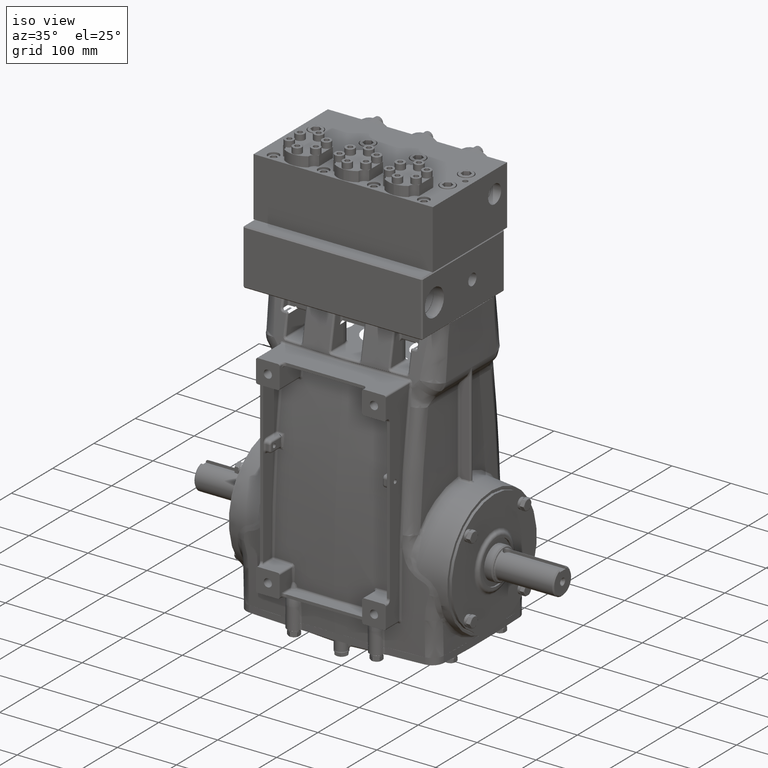
[diagram: clean part render]
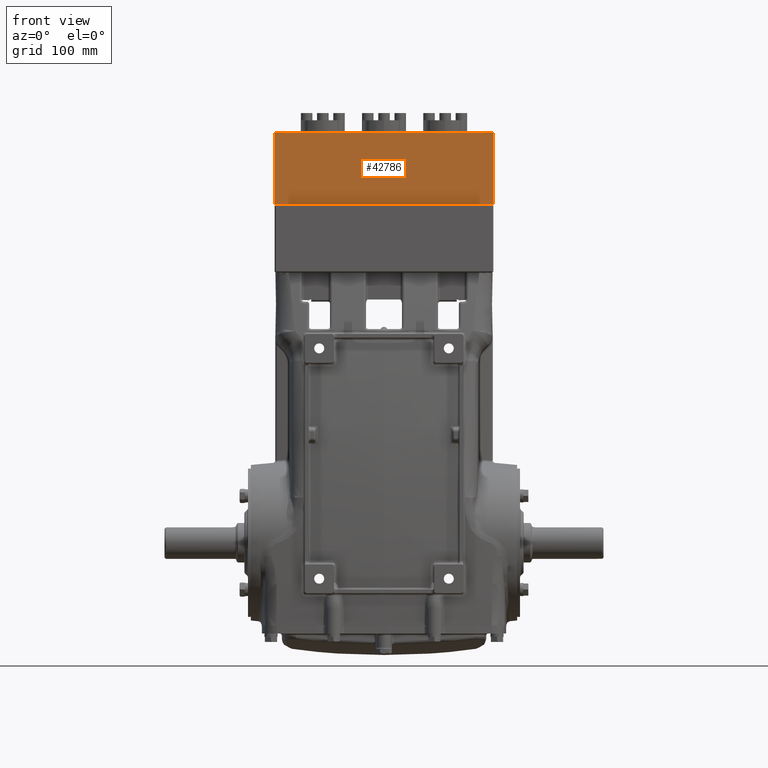
[diagram: tour spotlight — one face highlighted and labeled with its STEP entity id]
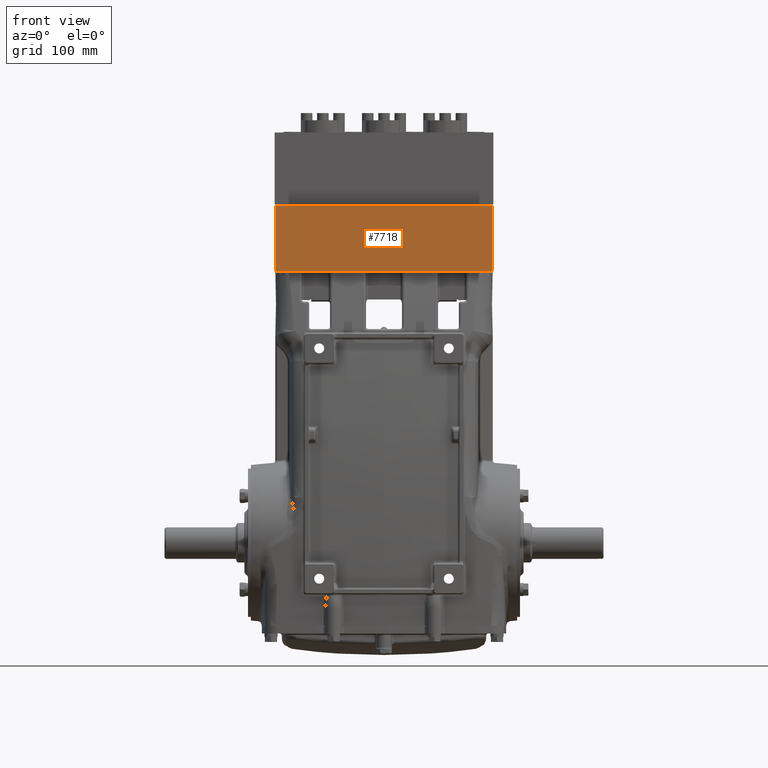
[diagram: tour spotlight — one face highlighted and labeled with its STEP entity id]
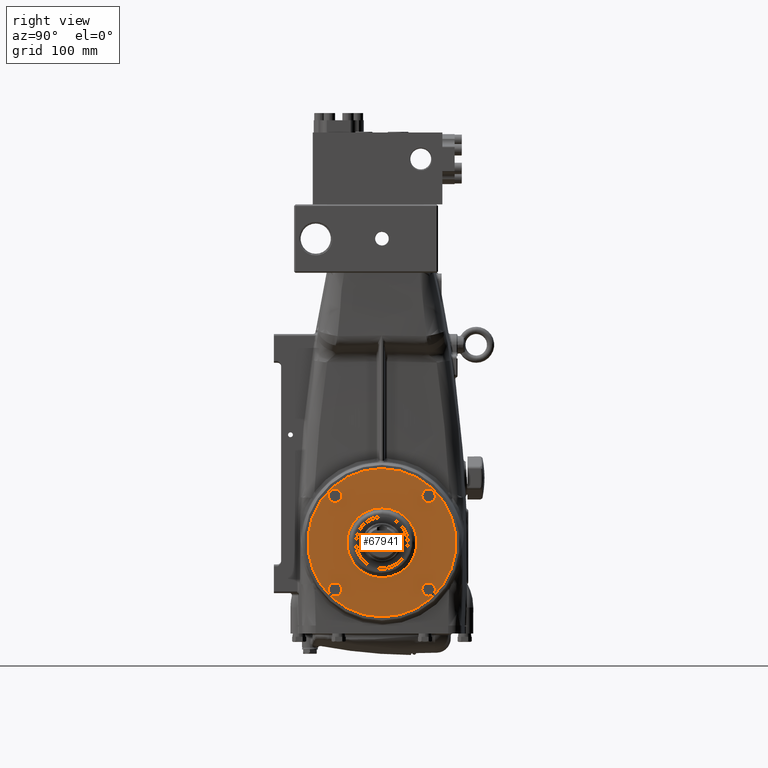
[diagram: tour spotlight — one face highlighted and labeled with its STEP entity id]
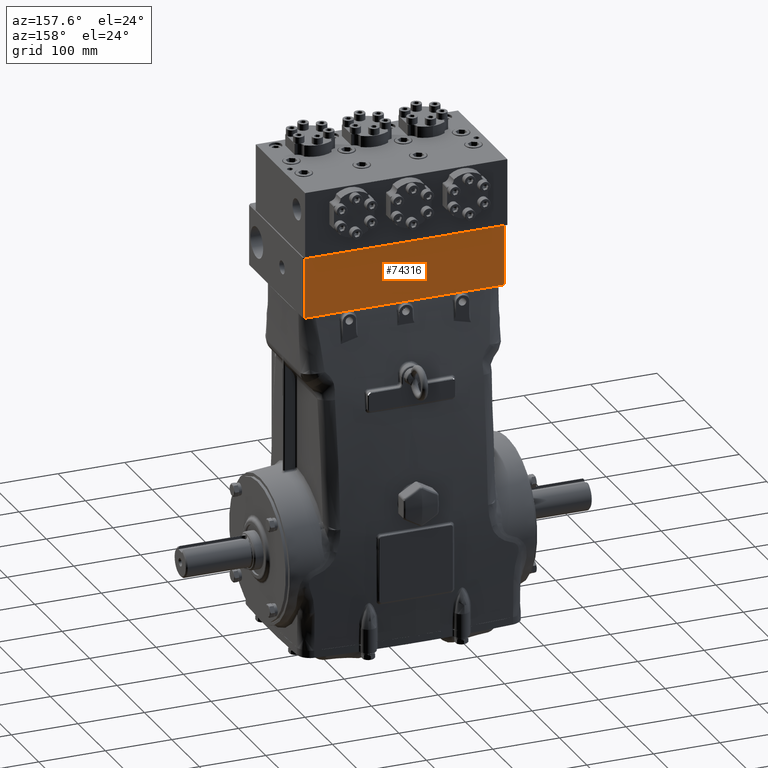
[diagram: tour spotlight — one face highlighted and labeled with its STEP entity id]
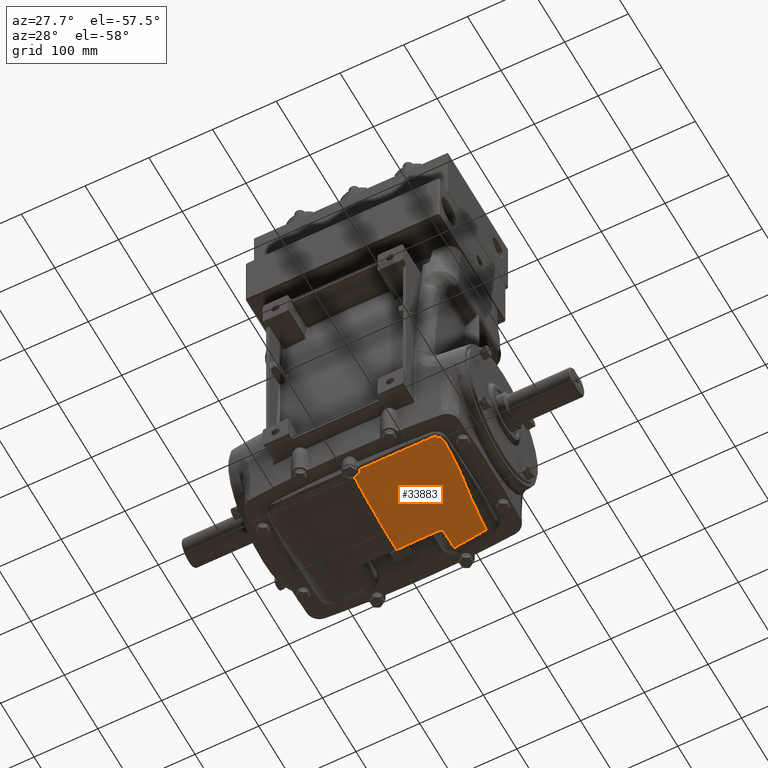
[diagram: tour spotlight — one face highlighted and labeled with its STEP entity id]
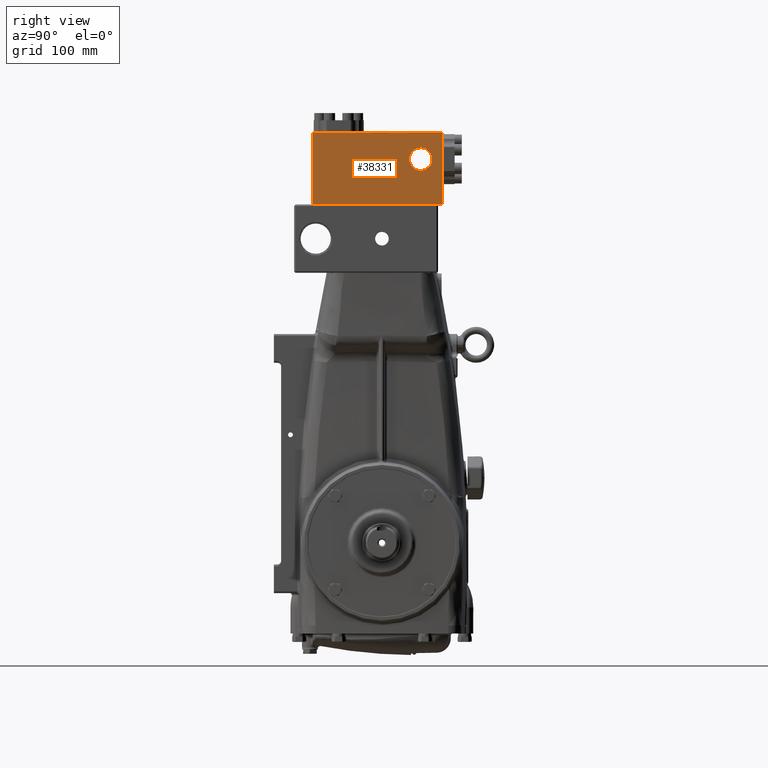
[diagram: tour spotlight — one face highlighted and labeled with its STEP entity id]
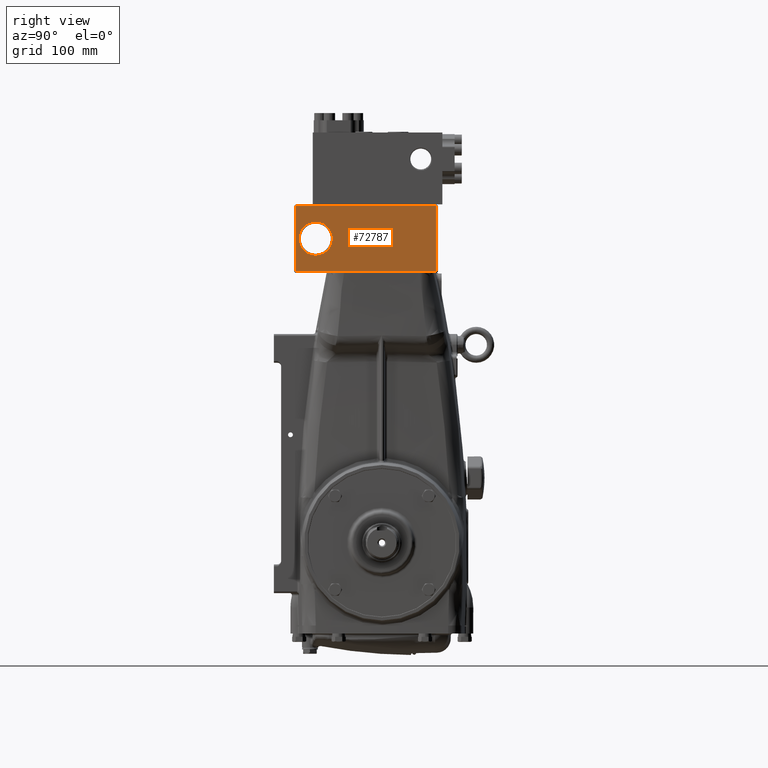
[diagram: tour spotlight — one face highlighted and labeled with its STEP entity id]
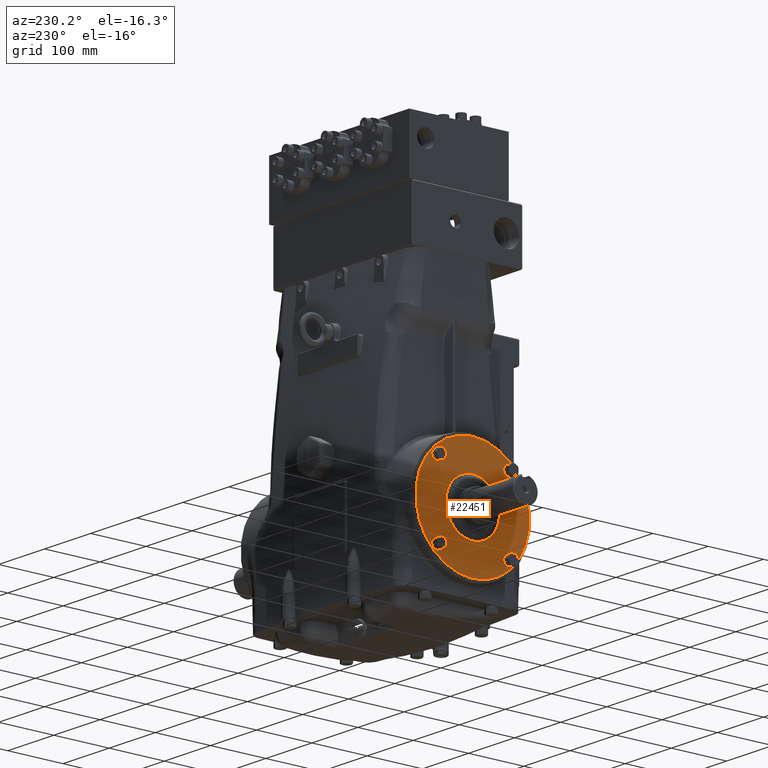
[diagram: tour spotlight — one face highlighted and labeled with its STEP entity id]
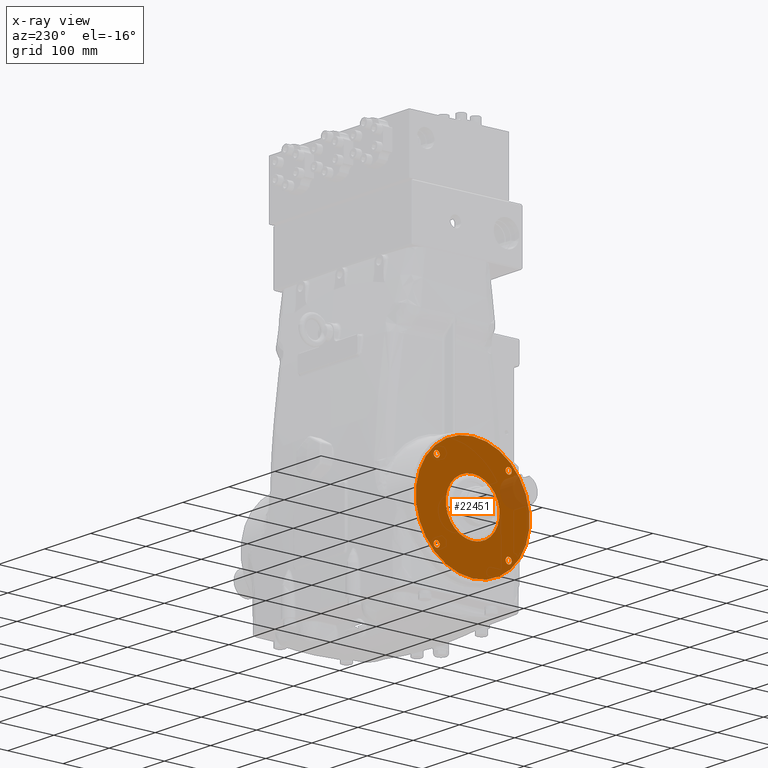
[diagram: x-ray of the same camera — body ghosted, this tour face saturated]
A machine part: a face-by-face anatomy tour. The part has 1840 B-rep faces; the first image is the clean iso view, then the 8 largest visible faces are spotlighted one at a time (largest first), each with its STEP entity span.

Face 1 — front view, entity #42786. In plain terms, the highlighted planar face has unit normal (0, 1, 0).
Definition (entity closure, byte-faithful):
#773 = LINE ( 'NONE', #17431, #80031 ) ;
#1592 = DIRECTION ( 'NONE',  ( -0.000000000000000000, -0.000000000000000000, -1.000000000000000000 ) ) ;
#4303 = FACE_OUTER_BOUND ( 'NONE', #62101, .T. ) ;
#5347 = ORIENTED_EDGE ( 'NONE', *, *, #37243, .T. ) ;
#7679 = CARTESIAN_POINT ( 'NONE',  ( 5.984251968503935259, -3.779527559055119390, 22.44094488188976655 ) ) ;
#10289 = EDGE_CURVE ( 'NONE', #55728, #55328, #773, .T. ) ;
#10370 = VERTEX_POINT ( 'NONE', #61160 ) ;
#13718 = CARTESIAN_POINT ( 'NONE',  ( -5.984251968503938812, -3.779527559055119390, 18.50393700787401841 ) ) ;
#14401 = CARTESIAN_POINT ( 'NONE',  ( -5.984251968503938812, -3.779527559055119390, 22.44094488188976655 ) ) ;
#17431 = CARTESIAN_POINT ( 'NONE',  ( -5.984251968503938812, -3.779527559055119390, 22.44094488188976655 ) ) ;
#18187 = ORIENTED_EDGE ( 'NONE', *, *, #10289, .F. ) ;
#21997 = ORIENTED_EDGE ( 'NONE', *, *, #59857, .F. ) ;
#27234 = AXIS2_PLACEMENT_3D ( 'NONE', #78013, #72362, #65503 ) ;
#27598 = ORIENTED_EDGE ( 'NONE', *, *, #41768, .T. ) ;
#30715 = VECTOR ( 'NONE', #71101, 39.37007874015748143 ) ;
#37243 = EDGE_CURVE ( 'NONE', #55728, #78420, #77151, .T. ) ;
#38791 = LINE ( 'NONE', #45699, #48007 ) ;
#41768 = EDGE_CURVE ( 'NONE', #78420, #10370, #38791, .T. ) ;
#41911 = VECTOR ( 'NONE', #1592, 39.37007874015748143 ) ;
#42786 = ADVANCED_FACE ( 'NONE', ( #4303 ), #47664, .F. ) ;
#45699 = CARTESIAN_POINT ( 'NONE',  ( -5.984251968503938812, -3.779527559055119390, 18.50393700787401841 ) ) ;
#47664 = PLANE ( 'NONE',  #27234 ) ;
#48007 = VECTOR ( 'NONE', #64334, 39.37007874015748143 ) ;
#49807 = DIRECTION ( 'NONE',  ( 1.000000000000000000, 0.000000000000000000, 0.000000000000000000 ) ) ;
#55328 = VERTEX_POINT ( 'NONE', #79201 ) ;
#55728 = VERTEX_POINT ( 'NONE', #66007 ) ;
#59857 = EDGE_CURVE ( 'NONE', #55328, #10370, #63186, .T. ) ;
#61160 = CARTESIAN_POINT ( 'NONE',  ( 5.984251968503935259, -3.779527559055119390, 18.50393700787401841 ) ) ;
#62101 = EDGE_LOOP ( 'NONE', ( #27598, #21997, #18187, #5347 ) ) ;
#63186 = LINE ( 'NONE', #7679, #41911 ) ;
#64334 = DIRECTION ( 'NONE',  ( 1.000000000000000000, 0.000000000000000000, 0.000000000000000000 ) ) ;
#65503 = DIRECTION ( 'NONE',  ( 0.000000000000000000, -0.000000000000000000, 1.000000000000000000 ) ) ;
#66007 = CARTESIAN_POINT ( 'NONE',  ( -5.984251968503938812, -3.779527559055119390, 22.44094488188976655 ) ) ;
#71101 = DIRECTION ( 'NONE',  ( -0.000000000000000000, -0.000000000000000000, -1.000000000000000000 ) ) ;
#72362 = DIRECTION ( 'NONE',  ( 0.000000000000000000, 1.000000000000000000, 0.000000000000000000 ) ) ;
#77151 = LINE ( 'NONE', #14401, #30715 ) ;
#78013 = CARTESIAN_POINT ( 'NONE',  ( -5.984251968503938812, -3.779527559055119390, 22.44094488188976655 ) ) ;
#78420 = VERTEX_POINT ( 'NONE', #13718 ) ;
#79201 = CARTESIAN_POINT ( 'NONE',  ( 5.984251968503935259, -3.779527559055119390, 22.44094488188976655 ) ) ;
#80031 = VECTOR ( 'NONE', #49807, 39.37007874015748143 ) ;

Face 2 — front view, entity #7718. In plain terms, the highlighted planar face has unit normal (0, 1, 0).
Definition (entity closure, byte-faithful):
#261 = VERTEX_POINT ( 'NONE', #53549 ) ;
#2320 = VERTEX_POINT ( 'NONE', #7508 ) ;
#3726 = ORIENTED_EDGE ( 'NONE', *, *, #54568, .T. ) ;
#5463 = EDGE_CURVE ( 'NONE', #261, #45864, #24102, .T. ) ;
#7508 = CARTESIAN_POINT ( 'NONE',  ( 5.905511811023617774, -4.803149606299214724, 18.42519685039369648 ) ) ;
#7694 = EDGE_LOOP ( 'NONE', ( #3726, #47635, #49773, #59890 ) ) ;
#7718 = ADVANCED_FACE ( 'NONE', ( #18789 ), #61732, .F. ) ;
#9956 = VECTOR ( 'NONE', #73525, 39.37007874015748143 ) ;
#12129 = CARTESIAN_POINT ( 'NONE',  ( 5.905511811023617774, -4.803149606299214724, 14.84251968503936858 ) ) ;
#13523 = VECTOR ( 'NONE', #29542, 39.37007874015748143 ) ;
#18789 = FACE_OUTER_BOUND ( 'NONE', #7694, .T. ) ;
#19420 = VERTEX_POINT ( 'NONE', #12129 ) ;
#19576 = DIRECTION ( 'NONE',  ( 0.000000000000000000, -0.000000000000000000, 1.000000000000000000 ) ) ;
#21248 = EDGE_CURVE ( 'NONE', #2320, #261, #66431, .T. ) ;
#23935 = DIRECTION ( 'NONE',  ( 1.000000000000000000, 0.000000000000000000, 0.000000000000000000 ) ) ;
#24102 = LINE ( 'NONE', #48823, #9956 ) ;
#24451 = DIRECTION ( 'NONE',  ( 0.000000000000000000, 0.000000000000000000, 1.000000000000000000 ) ) ;
#24737 = LINE ( 'NONE', #42562, #45454 ) ;
#29542 = DIRECTION ( 'NONE',  ( -1.000000000000000000, 0.000000000000000000, 0.000000000000000000 ) ) ;
#37371 = CARTESIAN_POINT ( 'NONE',  ( 5.905511811023617774, -4.803149606299214724, 18.50393700787401130 ) ) ;
#37780 = CARTESIAN_POINT ( 'NONE',  ( -5.984251968503938812, -4.803149606299214724, 18.50393700787401130 ) ) ;
#41872 = LINE ( 'NONE', #37371, #77261 ) ;
#42562 = CARTESIAN_POINT ( 'NONE',  ( 5.984251968503935259, -4.803149606299214724, 14.84251968503936858 ) ) ;
#45454 = VECTOR ( 'NONE', #23935, 39.37007874015748143 ) ;
#45864 = VERTEX_POINT ( 'NONE', #68450 ) ;
#47384 = CARTESIAN_POINT ( 'NONE',  ( -5.984251968503938812, -4.803149606299214724, 18.42519685039369648 ) ) ;
#47635 = ORIENTED_EDGE ( 'NONE', *, *, #64116, .T. ) ;
#48823 = CARTESIAN_POINT ( 'NONE',  ( -5.905511811023623991, -4.803149606299214724, 18.50393700787401130 ) ) ;
#49773 = ORIENTED_EDGE ( 'NONE', *, *, #21248, .T. ) ;
#50359 = DIRECTION ( 'NONE',  ( 0.000000000000000000, 1.000000000000000000, 0.000000000000000000 ) ) ;
#53549 = CARTESIAN_POINT ( 'NONE',  ( -5.905511811023623991, -4.803149606299214724, 18.42519685039369648 ) ) ;
#54568 = EDGE_CURVE ( 'NONE', #45864, #19420, #24737, .T. ) ;
#59890 = ORIENTED_EDGE ( 'NONE', *, *, #5463, .T. ) ;
#61732 = PLANE ( 'NONE',  #64270 ) ;
#64116 = EDGE_CURVE ( 'NONE', #19420, #2320, #41872, .T. ) ;
#64270 = AXIS2_PLACEMENT_3D ( 'NONE', #37780, #50359, #19576 ) ;
#66431 = LINE ( 'NONE', #47384, #13523 ) ;
#68450 = CARTESIAN_POINT ( 'NONE',  ( -5.905511811023623991, -4.803149606299214724, 14.84251968503936858 ) ) ;
#73525 = DIRECTION ( 'NONE',  ( 0.000000000000000000, 0.000000000000000000, -1.000000000000000000 ) ) ;
#77261 = VECTOR ( 'NONE', #24451, 39.37007874015748143 ) ;

Face 3 — right view, entity #67941. In plain terms, the highlighted planar face has unit normal (-1, 0, 0).
Definition (entity closure, byte-faithful):
#730 = DIRECTION ( 'NONE',  ( -1.000000000000000000, -4.336808689941974349E-16, 4.336808689942020694E-16 ) ) ;
#1297 = ORIENTED_EDGE ( 'NONE', *, *, #64082, .T. ) ;
#2663 = DIRECTION ( 'NONE',  ( 1.000000000000000000, -0.000000000000000000, 0.000000000000000000 ) ) ;
#2970 = DIRECTION ( 'NONE',  ( 0.000000000000000000, 1.000000000000000000, -2.523234146875353730E-15 ) ) ;
#3242 = EDGE_LOOP ( 'NONE', ( #48980, #46386 ) ) ;
#3360 = CARTESIAN_POINT ( 'NONE',  ( 7.440944881889763884, 2.561174168077244850, -2.561174168077272828 ) ) ;
#5002 = EDGE_CURVE ( 'NONE', #69963, #79730, #12575, .T. ) ;
#5561 = DIRECTION ( 'NONE',  ( 0.000000000000000000, 1.000000000000000000, -2.523234146875353730E-15 ) ) ;
#5924 = DIRECTION ( 'NONE',  ( 0.000000000000000000, 0.000000000000000000, 1.000000000000000000 ) ) ;
#6341 = CARTESIAN_POINT ( 'NONE',  ( 7.440944881889763884, 5.732295425026575838E-30, 1.915758032985999337 ) ) ;
#6967 = DIRECTION ( 'NONE',  ( 0.000000000000000000, 0.000000000000000000, 1.000000000000000000 ) ) ;
#7316 = ORIENTED_EDGE ( 'NONE', *, *, #50738, .T. ) ;
#7949 = CARTESIAN_POINT ( 'NONE',  ( 7.440944881889766549, -2.561174168077280822, -2.561174168077235080 ) ) ;
#8361 = AXIS2_PLACEMENT_3D ( 'NONE', #14176, #32406, #38878 ) ;
#9953 = FACE_BOUND ( 'NONE', #72655, .T. ) ;
#10462 = ORIENTED_EDGE ( 'NONE', *, *, #16006, .T. ) ;
#10961 = EDGE_LOOP ( 'NONE', ( #39809, #39023 ) ) ;
#11868 = EDGE_CURVE ( 'NONE', #71148, #68774, #25618, .T. ) ;
#12088 = AXIS2_PLACEMENT_3D ( 'NONE', #58160, #2663, #32628 ) ;
#12575 = CIRCLE ( 'NONE', #70743, 0.2165354330708663400 ) ;
#13600 = CARTESIAN_POINT ( 'NONE',  ( 7.440944881889766549, -2.561174168077279045, -2.344638735006368435 ) ) ;
#14176 = CARTESIAN_POINT ( 'NONE',  ( 7.440944881889763884, 2.561174168077263502, 2.561174168077252844 ) ) ;
#15160 = CARTESIAN_POINT ( 'NONE',  ( 7.440944881889763884, 2.561174168077263502, 2.561174168077252844 ) ) ;
#15366 = AXIS2_PLACEMENT_3D ( 'NONE', #56861, #26476, #74679 ) ;
#15690 = CARTESIAN_POINT ( 'NONE',  ( 7.440944881889763884, 2.346126943037190593E-16, -1.915758032985999337 ) ) ;
#16006 = EDGE_CURVE ( 'NONE', #65985, #30107, #46797, .T. ) ;
#16188 = CIRCLE ( 'NONE', #8361, 0.2165354330708663400 ) ;
#16628 = CARTESIAN_POINT ( 'NONE',  ( 7.440944881889766549, -2.561174168077282598, -2.777709601148101282 ) ) ;
#17531 = AXIS2_PLACEMENT_3D ( 'NONE', #36204, #41084, #29327 ) ;
#18350 = AXIS2_PLACEMENT_3D ( 'NONE', #7949, #63866, #69519 ) ;
#19983 = EDGE_CURVE ( 'NONE', #68774, #71148, #71591, .T. ) ;
#21667 = CIRCLE ( 'NONE', #38461, 0.2165354330708663400 ) ;
#22017 = VERTEX_POINT ( 'NONE', #15690 ) ;
#22143 = FACE_BOUND ( 'NONE', #10961, .T. ) ;
#23022 = CARTESIAN_POINT ( 'NONE',  ( 7.440944881889763884, 2.777709601148111052, -2.561174168077273272 ) ) ;
#23181 = CIRCLE ( 'NONE', #15366, 0.2165354330708663400 ) ;
#23514 = EDGE_LOOP ( 'NONE', ( #1297, #7316 ) ) ;
#24831 = VERTEX_POINT ( 'NONE', #6341 ) ;
#25618 = CIRCLE ( 'NONE', #35968, 4.055118110236220375 ) ;
#26476 = DIRECTION ( 'NONE',  ( -1.000000000000000000, -4.336808689941974349E-16, 4.336808689942020694E-16 ) ) ;
#26602 = VERTEX_POINT ( 'NONE', #48328 ) ;
#27318 = EDGE_LOOP ( 'NONE', ( #47262, #35734 ) ) ;
#27721 = DIRECTION ( 'NONE',  ( -1.000000000000000000, 0.000000000000000000, 0.000000000000000000 ) ) ;
#27788 = DIRECTION ( 'NONE',  ( 1.000000000000000000, -0.000000000000000000, 0.000000000000000000 ) ) ;
#28281 = CIRCLE ( 'NONE', #43832, 0.2165354330708663400 ) ;
#29327 = DIRECTION ( 'NONE',  ( 0.000000000000000000, -7.569702440626060006E-15, -1.000000000000000000 ) ) ;
#30107 = VERTEX_POINT ( 'NONE', #16628 ) ;
#32406 = DIRECTION ( 'NONE',  ( -1.000000000000000000, 0.000000000000000000, 0.000000000000000000 ) ) ;
#32628 = DIRECTION ( 'NONE',  ( 0.000000000000000000, 0.000000000000000000, -1.000000000000000000 ) ) ;
#32880 = FACE_OUTER_BOUND ( 'NONE', #3242, .T. ) ;
#33651 = CARTESIAN_POINT ( 'NONE',  ( 7.440944881889763884, 4.966087413865308463E-16, 4.055118110236220375 ) ) ;
#34650 = DIRECTION ( 'NONE',  ( 0.000000000000000000, 0.000000000000000000, -1.000000000000000000 ) ) ;
#34668 = FACE_BOUND ( 'NONE', #74335, .T. ) ;
#35734 = ORIENTED_EDGE ( 'NONE', *, *, #46374, .T. ) ;
#35968 = AXIS2_PLACEMENT_3D ( 'NONE', #59375, #27788, #34650 ) ;
#36204 = CARTESIAN_POINT ( 'NONE',  ( 7.440944881889766549, -2.561174168077280822, -2.561174168077235080 ) ) ;
#37126 = CARTESIAN_POINT ( 'NONE',  ( 7.440944881889763884, 2.561174168077244850, -2.561174168077272828 ) ) ;
#37356 = DIRECTION ( 'NONE',  ( -1.000000000000000000, 0.000000000000000000, 0.000000000000000000 ) ) ;
#38461 = AXIS2_PLACEMENT_3D ( 'NONE', #15160, #71454, #39868 ) ;
#38528 = EDGE_CURVE ( 'NONE', #79730, #69963, #48945, .T. ) ;
#38878 = DIRECTION ( 'NONE',  ( 0.000000000000000000, 0.000000000000000000, 1.000000000000000000 ) ) ;
#39023 = ORIENTED_EDGE ( 'NONE', *, *, #39222, .T. ) ;
#39053 = DIRECTION ( 'NONE',  ( 0.000000000000000000, 0.000000000000000000, 1.000000000000000000 ) ) ;
#39124 = CARTESIAN_POINT ( 'NONE',  ( 7.440944881889766549, -2.777709601148093288, 2.561174168077292812 ) ) ;
#39222 = EDGE_CURVE ( 'NONE', #26602, #66644, #28281, .T. ) ;
#39809 = ORIENTED_EDGE ( 'NONE', *, *, #78648, .T. ) ;
#39868 = DIRECTION ( 'NONE',  ( 0.000000000000000000, 0.000000000000000000, 1.000000000000000000 ) ) ;
#40984 = CIRCLE ( 'NONE', #79772, 1.915758032985999337 ) ;
#41084 = DIRECTION ( 'NONE',  ( -1.000000000000000000, -8.673617379884039416E-16, 3.220972070688151402E-30 ) ) ;
#43412 = CIRCLE ( 'NONE', #17531, 0.2165354330708663400 ) ;
#43832 = AXIS2_PLACEMENT_3D ( 'NONE', #68365, #730, #62691 ) ;
#44238 = CARTESIAN_POINT ( 'NONE',  ( 7.440944881889763884, 4.055118110236220375, -9.004170987117411095E-16 ) ) ;
#44750 = CARTESIAN_POINT ( 'NONE',  ( 7.440944881889763884, 5.732295425026575838E-30, 0.000000000000000000 ) ) ;
#46374 = EDGE_CURVE ( 'NONE', #22017, #24831, #74178, .T. ) ;
#46386 = ORIENTED_EDGE ( 'NONE', *, *, #19983, .T. ) ;
#46797 = CIRCLE ( 'NONE', #18350, 0.2165354330708663400 ) ;
#47262 = ORIENTED_EDGE ( 'NONE', *, *, #74127, .T. ) ;
#48182 = VERTEX_POINT ( 'NONE', #61302 ) ;
#48328 = CARTESIAN_POINT ( 'NONE',  ( 7.440944881889766549, -2.344638735006360442, 2.561174168077288371 ) ) ;
#48885 = DIRECTION ( 'NONE',  ( -1.000000000000000000, 0.000000000000000000, 0.000000000000000000 ) ) ;
#48921 = DIRECTION ( 'NONE',  ( -1.000000000000000000, -4.336808689942034992E-16, -4.336808689942018722E-16 ) ) ;
#48934 = CARTESIAN_POINT ( 'NONE',  ( 7.440944881889763884, 2.344638735006378649, -2.561174168077271940 ) ) ;
#48945 = CIRCLE ( 'NONE', #69612, 0.2165354330708663400 ) ;
#48980 = ORIENTED_EDGE ( 'NONE', *, *, #11868, .T. ) ;
#49934 = PLANE ( 'NONE',  #57362 ) ;
#50738 = EDGE_CURVE ( 'NONE', #78435, #48182, #16188, .T. ) ;
#54099 = CARTESIAN_POINT ( 'NONE',  ( 7.440944881889763884, 2.561174168077263502, 2.344638735006386643 ) ) ;
#54779 = AXIS2_PLACEMENT_3D ( 'NONE', #44750, #27721, #39053 ) ;
#55037 = ORIENTED_EDGE ( 'NONE', *, *, #38528, .T. ) ;
#56708 = CARTESIAN_POINT ( 'NONE',  ( 7.440944881889763884, 5.732295425026575838E-30, -4.055118110236220375 ) ) ;
#56861 = CARTESIAN_POINT ( 'NONE',  ( 7.440944881889766549, -2.561174168077226643, 2.561174168077290592 ) ) ;
#57362 = AXIS2_PLACEMENT_3D ( 'NONE', #44238, #37356, #6967 ) ;
#57662 = DIRECTION ( 'NONE',  ( -1.000000000000000000, -4.336808689942034992E-16, -4.336808689942018722E-16 ) ) ;
#58160 = CARTESIAN_POINT ( 'NONE',  ( 7.440944881889763884, 5.732295425026575838E-30, 0.000000000000000000 ) ) ;
#59375 = CARTESIAN_POINT ( 'NONE',  ( 7.440944881889763884, 5.732295425026575838E-30, 0.000000000000000000 ) ) ;
#59396 = FACE_BOUND ( 'NONE', #23514, .T. ) ;
#61204 = EDGE_CURVE ( 'NONE', #30107, #65985, #43412, .T. ) ;
#61302 = CARTESIAN_POINT ( 'NONE',  ( 7.440944881889763884, 2.561174168077263502, 2.777709601148119489 ) ) ;
#62364 = ORIENTED_EDGE ( 'NONE', *, *, #5002, .T. ) ;
#62691 = DIRECTION ( 'NONE',  ( 0.000000000000000000, -1.000000000000000000, 1.009293658750141492E-14 ) ) ;
#63866 = DIRECTION ( 'NONE',  ( -1.000000000000000000, -8.673617379884039416E-16, 3.220972070688151402E-30 ) ) ;
#64082 = EDGE_CURVE ( 'NONE', #48182, #78435, #21667, .T. ) ;
#64910 = ORIENTED_EDGE ( 'NONE', *, *, #61204, .T. ) ;
#65985 = VERTEX_POINT ( 'NONE', #13600 ) ;
#66644 = VERTEX_POINT ( 'NONE', #39124 ) ;
#67941 = ADVANCED_FACE ( 'NONE', ( #22143, #9953, #34668, #59396, #69333, #32880 ), #49934, .F. ) ;
#68365 = CARTESIAN_POINT ( 'NONE',  ( 7.440944881889766549, -2.561174168077226643, 2.561174168077290592 ) ) ;
#68774 = VERTEX_POINT ( 'NONE', #33651 ) ;
#69333 = FACE_BOUND ( 'NONE', #27318, .T. ) ;
#69519 = DIRECTION ( 'NONE',  ( 0.000000000000000000, -7.569702440626060006E-15, -1.000000000000000000 ) ) ;
#69612 = AXIS2_PLACEMENT_3D ( 'NONE', #3360, #57662, #2970 ) ;
#69963 = VERTEX_POINT ( 'NONE', #23022 ) ;
#70743 = AXIS2_PLACEMENT_3D ( 'NONE', #37126, #48921, #5561 ) ;
#71148 = VERTEX_POINT ( 'NONE', #56708 ) ;
#71454 = DIRECTION ( 'NONE',  ( -1.000000000000000000, 0.000000000000000000, 0.000000000000000000 ) ) ;
#71591 = CIRCLE ( 'NONE', #12088, 4.055118110236220375 ) ;
#72381 = CARTESIAN_POINT ( 'NONE',  ( 7.440944881889763884, 5.732295425026575838E-30, 0.000000000000000000 ) ) ;
#72655 = EDGE_LOOP ( 'NONE', ( #64910, #10462 ) ) ;
#74127 = EDGE_CURVE ( 'NONE', #24831, #22017, #40984, .T. ) ;
#74178 = CIRCLE ( 'NONE', #54779, 1.915758032985999337 ) ;
#74335 = EDGE_LOOP ( 'NONE', ( #62364, #55037 ) ) ;
#74679 = DIRECTION ( 'NONE',  ( 0.000000000000000000, -1.000000000000000000, 1.009293658750141492E-14 ) ) ;
#78435 = VERTEX_POINT ( 'NONE', #54099 ) ;
#78648 = EDGE_CURVE ( 'NONE', #66644, #26602, #23181, .T. ) ;
#79730 = VERTEX_POINT ( 'NONE', #48934 ) ;
#79772 = AXIS2_PLACEMENT_3D ( 'NONE', #72381, #48885, #5924 ) ;

Face 4 — auxiliary view, entity #74316. In plain terms, the highlighted planar face has unit normal (0, -1, 0).
Definition (entity closure, byte-faithful):
#1831 = DIRECTION ( 'NONE',  ( 0.000000000000000000, -0.000000000000000000, -1.000000000000000000 ) ) ;
#3746 = DIRECTION ( 'NONE',  ( 0.000000000000000000, 0.000000000000000000, -1.000000000000000000 ) ) ;
#7993 = ORIENTED_EDGE ( 'NONE', *, *, #15525, .T. ) ;
#8631 = CARTESIAN_POINT ( 'NONE',  ( 5.905511811023617774, 3.070866141732282006, 18.42519685039369648 ) ) ;
#8740 = EDGE_CURVE ( 'NONE', #44962, #24454, #20800, .T. ) ;
#12354 = ORIENTED_EDGE ( 'NONE', *, *, #8740, .T. ) ;
#14937 = LINE ( 'NONE', #59083, #63563 ) ;
#15427 = EDGE_CURVE ( 'NONE', #24454, #56739, #14937, .T. ) ;
#15525 = EDGE_CURVE ( 'NONE', #56739, #68285, #33357, .T. ) ;
#16150 = DIRECTION ( 'NONE',  ( -1.000000000000000000, 0.000000000000000000, 0.000000000000000000 ) ) ;
#17735 = VECTOR ( 'NONE', #68436, 39.37007874015748143 ) ;
#18242 = CARTESIAN_POINT ( 'NONE',  ( -5.984251968503938812, 3.070866141732282006, 18.42519685039369648 ) ) ;
#19044 = CARTESIAN_POINT ( 'NONE',  ( -5.905511811023623103, 3.070866141732282006, 18.42519685039369648 ) ) ;
#20800 = LINE ( 'NONE', #39409, #30728 ) ;
#22817 = DIRECTION ( 'NONE',  ( 0.000000000000000000, 0.000000000000000000, 1.000000000000000000 ) ) ;
#24454 = VERTEX_POINT ( 'NONE', #46597 ) ;
#30728 = VECTOR ( 'NONE', #3746, 39.37007874015748143 ) ;
#31671 = EDGE_CURVE ( 'NONE', #68285, #44962, #49039, .T. ) ;
#32508 = CARTESIAN_POINT ( 'NONE',  ( -5.905511811023623103, 3.070866141732282006, 14.84251968503936858 ) ) ;
#32608 = CARTESIAN_POINT ( 'NONE',  ( -5.984251968503938812, 3.070866141732282006, 18.50393700787401130 ) ) ;
#33357 = LINE ( 'NONE', #46323, #54550 ) ;
#39409 = CARTESIAN_POINT ( 'NONE',  ( 5.905511811023617774, 3.070866141732282006, 18.50393700787401130 ) ) ;
#44962 = VERTEX_POINT ( 'NONE', #8631 ) ;
#46323 = CARTESIAN_POINT ( 'NONE',  ( -5.905511811023623103, 3.070866141732282006, 18.50393700787401130 ) ) ;
#46597 = CARTESIAN_POINT ( 'NONE',  ( 5.905511811023617774, 3.070866141732282006, 14.84251968503936858 ) ) ;
#48085 = EDGE_LOOP ( 'NONE', ( #69444, #12354, #57120, #7993 ) ) ;
#49039 = LINE ( 'NONE', #18242, #17735 ) ;
#54550 = VECTOR ( 'NONE', #22817, 39.37007874015748143 ) ;
#55296 = AXIS2_PLACEMENT_3D ( 'NONE', #32608, #57331, #1831 ) ;
#56739 = VERTEX_POINT ( 'NONE', #32508 ) ;
#56929 = PLANE ( 'NONE',  #55296 ) ;
#57120 = ORIENTED_EDGE ( 'NONE', *, *, #15427, .T. ) ;
#57331 = DIRECTION ( 'NONE',  ( 0.000000000000000000, -1.000000000000000000, 0.000000000000000000 ) ) ;
#59083 = CARTESIAN_POINT ( 'NONE',  ( -5.984251968503938812, 3.070866141732282006, 14.84251968503936858 ) ) ;
#63563 = VECTOR ( 'NONE', #16150, 39.37007874015748143 ) ;
#68285 = VERTEX_POINT ( 'NONE', #19044 ) ;
#68436 = DIRECTION ( 'NONE',  ( 1.000000000000000000, 0.000000000000000000, 0.000000000000000000 ) ) ;
#69082 = FACE_OUTER_BOUND ( 'NONE', #48085, .T. ) ;
#69444 = ORIENTED_EDGE ( 'NONE', *, *, #31671, .T. ) ;
#74316 = ADVANCED_FACE ( 'NONE', ( #69082 ), #56929, .F. ) ;

Face 5 — auxiliary view, entity #33883. In plain terms, the highlighted toroidal blend (fillet) surface has major radius 300 mm and minor (blend) radius 700 mm.
Definition (entity closure, byte-faithful):
#115 = B_SPLINE_CURVE_WITH_KNOTS ( 'NONE', 3,
 ( #68273, #55748, #67894, #30221, #23752, #24952, #73964, #73172 ),
 .UNSPECIFIED., .F., .F.,
 ( 4, 2, 2, 4 ),
 ( 0.000000000000000000, 0.003011261225356658567, 0.004516891838034986333, 0.006022522450713315399 ),
 .UNSPECIFIED. ) ;
#157 = CARTESIAN_POINT ( 'NONE',  ( 2.658464246173371848, 1.645070282001908746, -6.050707505818283316 ) ) ;
#918 = CARTESIAN_POINT ( 'NONE',  ( 2.467158401820672697, 1.607300103456730689, -6.062914490278744850 ) ) ;
#3049 = CIRCLE ( 'NONE', #69015, 27.55905511811023700 ) ;
#3211 = CARTESIAN_POINT ( 'NONE',  ( -3.346919348482985394E-33, 1.582229971301458704, -6.140072423287879388 ) ) ;
#3508 = CARTESIAN_POINT ( 'NONE',  ( 1.623828398297766595, 1.590368489560495702, -6.115024639625040059 ) ) ;
#3968 = CARTESIAN_POINT ( 'NONE',  ( 2.812148308104204020, 1.701088795419486877, -6.040299091886770277 ) ) ;
#4489 = CARTESIAN_POINT ( 'NONE',  ( 5.168341137774181249, -3.342557198949430042, -5.307357947498045903 ) ) ;
#4530 = CARTESIAN_POINT ( 'NONE',  ( 2.812132526087493645, 3.010549370942952496, -6.014990193079878367 ) ) ;
#4586 = CARTESIAN_POINT ( 'NONE',  ( 0.000000000000000000, 1.824751546699278082, 21.41791557091272225 ) ) ;
#4914 = CARTESIAN_POINT ( 'NONE',  ( 4.880541632516624873, 1.924048125077437943, -5.854718412481648926 ) ) ;
#5390 = DIRECTION ( 'NONE',  ( 0.000000000000000000, 0.000000000000000000, 1.000000000000000000 ) ) ;
#5971 = B_SPLINE_CURVE_WITH_KNOTS ( 'NONE', 3,
 ( #8477, #57894, #78496, #40053, #64793, #53033 ),
 .UNSPECIFIED., .F., .F.,
 ( 4, 2, 4 ),
 ( 0.01236748594910173221, 0.06737170396115280124, 0.1223759219732038495 ),
 .UNSPECIFIED. ) ;
#6999 = CARTESIAN_POINT ( 'NONE',  ( 0.4877294735864445840, -3.659535562739759218, -5.586873153588124197 ) ) ;
#7151 = CARTESIAN_POINT ( 'NONE',  ( 4.166371834084402259, 2.946303581037741814, -5.903031597596715585 ) ) ;
#7960 = VERTEX_POINT ( 'NONE', #4530 ) ;
#8477 = CARTESIAN_POINT ( 'NONE',  ( 0.4877294735864445840, -3.659535562739759218, -5.586873153588124197 ) ) ;
#10158 = CARTESIAN_POINT ( 'NONE',  ( 4.984472006344477180, -3.457394581205895268, -5.309210827171242819 ) ) ;
#10563 = CARTESIAN_POINT ( 'NONE',  ( 5.206194522468571506, -3.303374770522423454, -5.309764036319435832 ) ) ;
#10969 = CARTESIAN_POINT ( 'NONE',  ( 5.358678364081207235, -2.963529652962363592, -5.351632691506574169 ) ) ;
#11588 = B_SPLINE_CURVE_WITH_KNOTS ( 'NONE', 3,
 ( #6999, #17993, #13486, #38174, #43090, #25250, #43473, #26035, #55654, #31316, #31715, #56427 ),
 .UNSPECIFIED., .F., .F.,
 ( 4, 2, 2, 2, 2, 4 ),
 ( 1.734723475976807094E-18, 0.002335081971561272108, 0.004670163943122542481, 0.007005245914683813288, 0.008172786900464447390, 0.009340327886245083228 ),
 .UNSPECIFIED. ) ;
#12289 = CARTESIAN_POINT ( 'NONE',  ( 2.689720252346790463, 1.655027810071075800, -6.048643191705019184 ) ) ;
#12809 = ORIENTED_EDGE ( 'NONE', *, *, #46599, .T. ) ;
#13486 = CARTESIAN_POINT ( 'NONE',  ( 0.4577033197737750414, -3.607162025404837102, -5.597837415561794039 ) ) ;
#14874 = ORIENTED_EDGE ( 'NONE', *, *, #56203, .F. ) ;
#15326 = EDGE_CURVE ( 'NONE', #40553, #25548, #35497, .T. ) ;
#16256 = CARTESIAN_POINT ( 'NONE',  ( 4.879996799677580377, -3.486948360581074713, -5.316731123404999870 ) ) ;
#16663 = CARTESIAN_POINT ( 'NONE',  ( 5.049886546279415356, -3.426009580275169331, -5.306842600727459391 ) ) ;
#16886 = CARTESIAN_POINT ( 'NONE',  ( 0.8124080174919480202, 1.582229971301457594, -6.140072423287882941 ) ) ;
#16894 = CARTESIAN_POINT ( 'NONE',  ( 2.434261824659145201, 1.606639635857287640, -6.064947200536434657 ) ) ;
#17064 = CARTESIAN_POINT ( 'NONE',  ( 5.337421209621137308, -3.068590556601563879, -5.335636005610887800 ) ) ;
#17743 = CARTESIAN_POINT ( 'NONE',  ( 4.840242302779922845, 2.899656050760234027, -5.821340785861177203 ) ) ;
#17981 = CARTESIAN_POINT ( 'NONE',  ( 2.595493415602901255, 1.628048154302350836, -6.054802203786146642 ) ) ;
#17993 = CARTESIAN_POINT ( 'NONE',  ( 0.4737789579380618510, -3.632699680336208825, -5.592498241481408172 ) ) ;
#18321 = CARTESIAN_POINT ( 'NONE',  ( 4.840242302779922845, 2.899656050760234027, -5.821340785861177203 ) ) ;
#18769 = CARTESIAN_POINT ( 'NONE',  ( 2.797004342591181025, 1.694917036608007521, -6.041353094498735032 ) ) ;
#19555 = CARTESIAN_POINT ( 'NONE',  ( 2.781809236411487252, 1.688860914153496928, -6.042403132590063564 ) ) ;
#20557 = VERTEX_POINT ( 'NONE', #61477 ) ;
#20621 = CARTESIAN_POINT ( 'NONE',  ( 2.812144280299276655, 2.574247221612352643, -6.033827933789728704 ) ) ;
#21646 = EDGE_LOOP ( 'NONE', ( #64295, #14874, #12809, #66372, #76669, #32658, #36002, #57505, #46479, #55841 ) ) ;
#23135 = CARTESIAN_POINT ( 'NONE',  ( 4.897888106521786078, -3.483187433946809186, -5.315206216569228204 ) ) ;
#23166 = CARTESIAN_POINT ( 'NONE',  ( 4.840242302779922845, 2.899656050760234027, -5.821340785861177203 ) ) ;
#23752 = CARTESIAN_POINT ( 'NONE',  ( 0.07845892614821234345, -3.369221067610173037, -5.647193954812964378 ) ) ;
#23931 = CARTESIAN_POINT ( 'NONE',  ( 4.825956977166343087, -3.494867071439379025, -5.321965457097936003 ) ) ;
#24850 = CARTESIAN_POINT ( 'NONE',  ( 2.735974893832352262, 1.671370829869121000, -6.045533616199472604 ) ) ;
#24916 = VERTEX_POINT ( 'NONE', #45600 ) ;
#24952 = CARTESIAN_POINT ( 'NONE',  ( 0.03927151281586335058, -3.365072260868046339, -5.648049143069698630 ) ) ;
#25250 = CARTESIAN_POINT ( 'NONE',  ( 0.3576885386915084619, -3.494681751219408383, -5.621257479502166809 ) ) ;
#25548 = VERTEX_POINT ( 'NONE', #18321 ) ;
#26035 = CARTESIAN_POINT ( 'NONE',  ( 0.2963987745866182855, -3.450012349667860967, -5.630511765672602031 ) ) ;
#28004 = B_SPLINE_CURVE_WITH_KNOTS ( 'NONE', 3,
 ( #30921, #918, #55248, #79919, #17981, #157, #12289, #24850, #56034, #49565, #19555, #18769, #43464, #44253 ),
 .UNSPECIFIED., .F., .F.,
 ( 4, 2, 2, 2, 2, 2, 4 ),
 ( 2.276126435504334081E-16, 0.002480966685143793076, 0.004961933370287358036, 0.007442900055430923430, 0.008683383398002690948, 0.009303625069288570804, 0.009923866740574450659 ),
 .UNSPECIFIED. ) ;
#28405 = CARTESIAN_POINT ( 'NONE',  ( 5.298649251694552476, -3.169923180994641765, -5.322347823598065020 ) ) ;
#30221 = CARTESIAN_POINT ( 'NONE',  ( 0.09811938222524238529, -3.372360663527925961, -5.646546757518499327 ) ) ;
#30680 = CARTESIAN_POINT ( 'NONE',  ( 2.812132526087493645, 3.010549370942952496, -6.014990193079878367 ) ) ;
#30921 = CARTESIAN_POINT ( 'NONE',  ( 2.434261824659145201, 1.606639635857287640, -6.064947200536434657 ) ) ;
#31316 = CARTESIAN_POINT ( 'NONE',  ( 0.2569883187545530245, -3.427063445841094236, -5.635257350601357906 ) ) ;
#31715 = CARTESIAN_POINT ( 'NONE',  ( 0.2435141439681423325, -3.420184421071718273, -5.636678491302456351 ) ) ;
#32658 = ORIENTED_EDGE ( 'NONE', *, *, #15326, .F. ) ;
#33883 = ADVANCED_FACE ( 'NONE', ( #59454 ), #57844, .T. ) ;
#34464 = CARTESIAN_POINT ( 'NONE',  ( 5.033724942537766367, -3.434453761081072365, -5.307302620882437871 ) ) ;
#35266 = CARTESIAN_POINT ( 'NONE',  ( 5.241086578144337871, -3.261236225363271846, -5.313054194956410292 ) ) ;
#35497 = B_SPLINE_CURVE_WITH_KNOTS ( 'NONE', 3,
 ( #48277, #36102, #35695, #78629, #4914, #23166 ),
 .UNSPECIFIED., .F., .F.,
 ( 4, 2, 4 ),
 ( 0.000000000000000000, 0.5000000000000000000, 1.000000000000000000 ),
 .UNSPECIFIED. ) ;
#35663 = CARTESIAN_POINT ( 'NONE',  ( 5.360178882565543645, -2.927451683223999623, -5.357800683653446860 ) ) ;
#35695 = CARTESIAN_POINT ( 'NONE',  ( 5.293015298459751605, -0.9872227947267740999, -5.656229700013359007 ) ) ;
#36002 = ORIENTED_EDGE ( 'NONE', *, *, #63148, .F. ) ;
#36102 = CARTESIAN_POINT ( 'NONE',  ( 5.400448329765261235, -1.959226436991761799, -5.523331220873142655 ) ) ;
#38174 = CARTESIAN_POINT ( 'NONE',  ( 0.4212764955910056619, -3.558700208755347205, -5.607948092893978220 ) ) ;
#39803 = B_SPLINE_CURVE_WITH_KNOTS ( 'NONE', 3,
 ( #17743, #7151, #56574, #30680 ),
 .UNSPECIFIED., .F., .F.,
 ( 4, 4 ),
 ( 0.000000000000000000, 0.05182488106915178472 ),
 .UNSPECIFIED. ) ;
#40053 = CARTESIAN_POINT ( 'NONE',  ( 3.371873501537797857, -3.583773380137238895, -5.465286664663715044 ) ) ;
#40378 = CARTESIAN_POINT ( 'NONE',  ( -3.346919348482985394E-33, 1.582229971301458704, -6.140072423287879388 ) ) ;
#40411 = DIRECTION ( 'NONE',  ( 0.000000000000000000, -1.000000000000000000, 0.000000000000000000 ) ) ;
#40553 = VERTEX_POINT ( 'NONE', #56146 ) ;
#40554 = CARTESIAN_POINT ( 'NONE',  ( 4.844032478405734032, -3.492783821194469507, -5.320111385042866736 ) ) ;
#40781 = CARTESIAN_POINT ( 'NONE',  ( 2.434261824659145201, 1.606639635857287640, -6.064947200536434657 ) ) ;
#40837 = CARTESIAN_POINT ( 'NONE',  ( 2.812149532266563501, 2.137760349558801121, -6.042263470602809328 ) ) ;
#40942 = CARTESIAN_POINT ( 'NONE',  ( 5.096777293988907331, -3.397681871397706832, -5.306199164813016012 ) ) ;
#41749 = CARTESIAN_POINT ( 'NONE',  ( 5.342144275654240992, -3.051303830555013974, -5.338125044618379000 ) ) ;
#42400 = VERTEX_POINT ( 'NONE', #45765 ) ;
#42540 = VERTEX_POINT ( 'NONE', #3211 ) ;
#43090 = CARTESIAN_POINT ( 'NONE',  ( 0.4011799817011136304, -3.536140021149514645, -5.612643640727642769 ) ) ;
#43464 = CARTESIAN_POINT ( 'NONE',  ( 2.804632689135867718, 1.698007479565428968, -6.040823438318117411 ) ) ;
#43473 = CARTESIAN_POINT ( 'NONE',  ( 0.3342401366933785978, -3.475711029905725447, -5.625190889438562714 ) ) ;
#43686 = B_SPLINE_CURVE_WITH_KNOTS ( 'NONE', 3,
 ( #46522, #20621, #40837, #3968 ),
 .UNSPECIFIED., .F., .F.,
 ( 4, 4 ),
 ( 0.000000000000000000, 0.03326646946209799866 ),
 .UNSPECIFIED. ) ;
#44253 = CARTESIAN_POINT ( 'NONE',  ( 2.812148308104204020, 1.701088795419486877, -6.040299091886770277 ) ) ;
#45600 = CARTESIAN_POINT ( 'NONE',  ( 3.842746221509609454E-15, -3.364041038235044301, -5.648261671423673747 ) ) ;
#45705 = CARTESIAN_POINT ( 'NONE',  ( 0.000000000000000000, 1.824751546699278082, 33.22893919295996312 ) ) ;
#45765 = CARTESIAN_POINT ( 'NONE',  ( 0.4877294735864445840, -3.659535562739759218, -5.586873153588124197 ) ) ;
#46479 = ORIENTED_EDGE ( 'NONE', *, *, #47442, .T. ) ;
#46522 = CARTESIAN_POINT ( 'NONE',  ( 2.812132526087493645, 3.010549370942952496, -6.014990193079878367 ) ) ;
#46599 = EDGE_CURVE ( 'NONE', #60711, #51496, #28004, .T. ) ;
#47442 = EDGE_CURVE ( 'NONE', #42400, #20557, #11588, .T. ) ;
#47839 = CARTESIAN_POINT ( 'NONE',  ( 5.319986711889992392, -3.119926642901834413, -5.328644194265905298 ) ) ;
#48277 = CARTESIAN_POINT ( 'NONE',  ( 5.360178882565543645, -2.927451683223999623, -5.357800683653446860 ) ) ;
#49565 = CARTESIAN_POINT ( 'NONE',  ( 2.774196398429848998, 1.685874443783022647, -6.042926722567060871 ) ) ;
#51496 = VERTEX_POINT ( 'NONE', #69310 ) ;
#51794 = DIRECTION ( 'NONE',  ( 0.000000000000000000, 0.000000000000000000, -1.000000000000000000 ) ) ;
#52204 = EDGE_CURVE ( 'NONE', #7960, #51496, #43686, .T. ) ;
#52332 = EDGE_CURVE ( 'NONE', #25548, #7960, #39803, .T. ) ;
#53033 = CARTESIAN_POINT ( 'NONE',  ( 4.807788219395104257, -3.496116492186950975, -5.323983456037651329 ) ) ;
#53924 = CARTESIAN_POINT ( 'NONE',  ( 5.281568287909769843, -3.201588821601273338, -5.318780719499171639 ) ) ;
#54875 = EDGE_CURVE ( 'NONE', #42400, #70231, #5971, .T. ) ;
#55248 = CARTESIAN_POINT ( 'NONE',  ( 2.499581784844672860, 1.610598010072807451, -6.060890861939918217 ) ) ;
#55654 = CARTESIAN_POINT ( 'NONE',  ( 0.2834083292045331826, -3.441962007930002621, -5.632177176608922586 ) ) ;
#55748 = CARTESIAN_POINT ( 'NONE',  ( 0.1937249615059463137, -3.397296402696205142, -5.641404435304998799 ) ) ;
#55841 = ORIENTED_EDGE ( 'NONE', *, *, #56317, .T. ) ;
#56034 = CARTESIAN_POINT ( 'NONE',  ( 2.751305435580421399, 1.677057974726242850, -6.044493808033123194 ) ) ;
#56146 = CARTESIAN_POINT ( 'NONE',  ( 5.360178882565543645, -2.927451683223999623, -5.357800683653446860 ) ) ;
#56203 = EDGE_CURVE ( 'NONE', #60711, #42540, #77395, .T. ) ;
#56317 = EDGE_CURVE ( 'NONE', #20557, #24916, #115, .T. ) ;
#56427 = CARTESIAN_POINT ( 'NONE',  ( 0.2297784026382459488, -3.413870119763415811, -5.637982275400688970 ) ) ;
#56574 = CARTESIAN_POINT ( 'NONE',  ( 3.490336519798898696, 2.983315668818144140, -5.967567498589518848 ) ) ;
#57505 = ORIENTED_EDGE ( 'NONE', *, *, #54875, .F. ) ;
#57844 = TOROIDAL_SURFACE ( 'NONE', #72077, 11.81102362204724265, 27.55905511811023700 ) ;
#57894 = CARTESIAN_POINT ( 'NONE',  ( 1.210477209355809602, -3.654505220724530101, -5.578813219982557747 ) ) ;
#59197 = CARTESIAN_POINT ( 'NONE',  ( 4.807788219395104257, -3.496116492186950975, -5.323983456037651329 ) ) ;
#59282 = EDGE_CURVE ( 'NONE', #42540, #24916, #3049, .T. ) ;
#59454 = FACE_OUTER_BOUND ( 'NONE', #21646, .T. ) ;
#59596 = CARTESIAN_POINT ( 'NONE',  ( 5.218333242062025867, -3.289595542081743762, -5.310752198899931109 ) ) ;
#59703 = DIRECTION ( 'NONE',  ( -1.000000000000000000, -0.000000000000000000, -0.000000000000000000 ) ) ;
#60001 = CARTESIAN_POINT ( 'NONE',  ( 5.251736528445274388, -3.246633039124112940, -5.314367873378915696 ) ) ;
#60711 = VERTEX_POINT ( 'NONE', #16894 ) ;
#61477 = CARTESIAN_POINT ( 'NONE',  ( 0.2297784026382459488, -3.413870119763415811, -5.637982275400688970 ) ) ;
#63148 = EDGE_CURVE ( 'NONE', #70231, #40553, #79454, .T. ) ;
#64295 = ORIENTED_EDGE ( 'NONE', *, *, #59282, .F. ) ;
#64793 = CARTESIAN_POINT ( 'NONE',  ( 4.090517692144738149, -3.545441420707249325, -5.403650496663405356 ) ) ;
#65289 = CARTESIAN_POINT ( 'NONE',  ( 4.950513585213516699, -3.469580393225757842, -5.311184794286596400 ) ) ;
#65680 = CARTESIAN_POINT ( 'NONE',  ( 5.081512726748598219, -3.407563633568248207, -5.306289430408320129 ) ) ;
#66088 = CARTESIAN_POINT ( 'NONE',  ( 5.140980375108047618, -3.366126144661426345, -5.306466500724023483 ) ) ;
#66372 = ORIENTED_EDGE ( 'NONE', *, *, #52204, .F. ) ;
#66484 = CARTESIAN_POINT ( 'NONE',  ( 5.353946565448759465, -2.998995579519901256, -5.345947324219060270 ) ) ;
#66679 = CARTESIAN_POINT ( 'NONE',  ( 4.807788219395104257, -3.496116492186950975, -5.323983456037651329 ) ) ;
#67894 = CARTESIAN_POINT ( 'NONE',  ( 0.1562833098085748829, -3.384908027298649369, -5.643959498002079300 ) ) ;
#68273 = CARTESIAN_POINT ( 'NONE',  ( 0.2297784026382459488, -3.413870119763415811, -5.637982275400688970 ) ) ;
#69015 = AXIS2_PLACEMENT_3D ( 'NONE', #4586, #59703, #5390 ) ;
#69310 = CARTESIAN_POINT ( 'NONE',  ( 2.812148308104204020, 1.701088795419486877, -6.040299091886770277 ) ) ;
#70231 = VERTEX_POINT ( 'NONE', #66679 ) ;
#72077 = AXIS2_PLACEMENT_3D ( 'NONE', #45705, #40411, #51794 ) ;
#72549 = CARTESIAN_POINT ( 'NONE',  ( 5.326361990746772967, -3.102858777173423732, -5.330900886658606730 ) ) ;
#73172 = CARTESIAN_POINT ( 'NONE',  ( 3.842746221509609454E-15, -3.364041038235044301, -5.648261671423673747 ) ) ;
#73964 = CARTESIAN_POINT ( 'NONE',  ( 0.01964966533313926636, -3.364041038235045633, -5.648261671423675523 ) ) ;
#76669 = ORIENTED_EDGE ( 'NONE', *, *, #52332, .F. ) ;
#77395 = B_SPLINE_CURVE_WITH_KNOTS ( 'NONE', 3,
 ( #40781, #3508, #16886, #40378 ),
 .UNSPECIFIED., .F., .F.,
 ( 4, 4 ),
 ( -0.06188400432762436454, 1.999312279274412241E-07 ),
 .UNSPECIFIED. ) ;
#78496 = CARTESIAN_POINT ( 'NONE',  ( 1.931853258259351724, -3.638305189545421481, -5.552868048543251334 ) ) ;
#78629 = CARTESIAN_POINT ( 'NONE',  ( 5.032817424147098428, 0.9545078366542655290, -5.821849382911058690 ) ) ;
#79454 = B_SPLINE_CURVE_WITH_KNOTS ( 'NONE', 3,
 ( #59197, #23931, #40554, #16256, #23135, #65289, #10158, #34464, #16663, #65680, #40942, #66088, #4489, #10563, #59596, #35266, #60001, #53924, #28405, #47839, #72549, #17064, #41749, #66484, #10969, #35663 ),
 .UNSPECIFIED., .F., .F.,
 ( 4, 2, 2, 2, 2, 2, 2, 2, 2, 2, 2, 2, 4 ),
 ( 0.000000000000000000, 0.001393468656929867412, 0.002786937313859734824, 0.005573874627719434954, 0.006967343284649294560, 0.008360811941579152431, 0.01114774925543880399, 0.01254121791236861329, 0.01393468656929842779, 0.01672162388315804812, 0.01811509254008786610, 0.01950856119701768060, 0.02229549851087730961 ),
 .UNSPECIFIED. ) ;
#79919 = CARTESIAN_POINT ( 'NONE',  ( 2.563751155393802605, 1.620961619166637169, -6.056834601465286738 ) ) ;

Face 6 — right view, entity #38331. In plain terms, the highlighted planar face has unit normal (-1, 0, 0).
Definition (entity closure, byte-faithful):
#1592 = DIRECTION ( 'NONE',  ( -0.000000000000000000, -0.000000000000000000, -1.000000000000000000 ) ) ;
#1717 = CIRCLE ( 'NONE', #28913, 0.6193150000000003930 ) ;
#4092 = VECTOR ( 'NONE', #40708, 39.37007874015748143 ) ;
#4224 = CARTESIAN_POINT ( 'NONE',  ( 5.984251968503935259, -3.779527559055119390, 22.44094488188976655 ) ) ;
#4905 = VERTEX_POINT ( 'NONE', #59065 ) ;
#6909 = VECTOR ( 'NONE', #15953, 39.37007874015748143 ) ;
#7679 = CARTESIAN_POINT ( 'NONE',  ( 5.984251968503935259, -3.779527559055119390, 22.44094488188976655 ) ) ;
#9205 = VERTEX_POINT ( 'NONE', #52296 ) ;
#10328 = DIRECTION ( 'NONE',  ( -1.000000000000000000, 0.000000000000000000, 0.000000000000000000 ) ) ;
#10370 = VERTEX_POINT ( 'NONE', #61160 ) ;
#14211 = VECTOR ( 'NONE', #23264, 39.37007874015748143 ) ;
#14351 = ORIENTED_EDGE ( 'NONE', *, *, #59129, .T. ) ;
#15953 = DIRECTION ( 'NONE',  ( 0.000000000000000000, 1.000000000000000000, 0.000000000000000000 ) ) ;
#19921 = EDGE_CURVE ( 'NONE', #54339, #9205, #1717, .T. ) ;
#21241 = LINE ( 'NONE', #46748, #6909 ) ;
#21742 = ORIENTED_EDGE ( 'NONE', *, *, #59857, .T. ) ;
#23264 = DIRECTION ( 'NONE',  ( 0.000000000000000000, 1.000000000000000000, 0.000000000000000000 ) ) ;
#24095 = FACE_OUTER_BOUND ( 'NONE', #63703, .T. ) ;
#25589 = ORIENTED_EDGE ( 'NONE', *, *, #36041, .F. ) ;
#28294 = AXIS2_PLACEMENT_3D ( 'NONE', #36211, #61342, #60946 ) ;
#28913 = AXIS2_PLACEMENT_3D ( 'NONE', #64243, #51692, #51279 ) ;
#33425 = AXIS2_PLACEMENT_3D ( 'NONE', #60972, #10328, #35836 ) ;
#35836 = DIRECTION ( 'NONE',  ( 0.000000000000000000, 0.000000000000000000, 1.000000000000000000 ) ) ;
#36041 = EDGE_CURVE ( 'NONE', #9205, #54339, #63226, .T. ) ;
#36211 = CARTESIAN_POINT ( 'NONE',  ( 5.984251968503935259, 2.125984251968502825, 20.98425196850393704 ) ) ;
#38331 = ADVANCED_FACE ( 'NONE', ( #42725, #24095 ), #72317, .F. ) ;
#40284 = VERTEX_POINT ( 'NONE', #57929 ) ;
#40708 = DIRECTION ( 'NONE',  ( -0.000000000000000000, -0.000000000000000000, -1.000000000000000000 ) ) ;
#40730 = EDGE_CURVE ( 'NONE', #55328, #40284, #78733, .T. ) ;
#41053 = ORIENTED_EDGE ( 'NONE', *, *, #19921, .F. ) ;
#41911 = VECTOR ( 'NONE', #1592, 39.37007874015748143 ) ;
#42725 = FACE_BOUND ( 'NONE', #64384, .T. ) ;
#44812 = EDGE_CURVE ( 'NONE', #40284, #4905, #66238, .T. ) ;
#46748 = CARTESIAN_POINT ( 'NONE',  ( 5.984251968503935259, -3.779527559055119390, 18.50393700787401841 ) ) ;
#51279 = DIRECTION ( 'NONE',  ( 0.000000000000000000, 0.000000000000000000, -1.000000000000000000 ) ) ;
#51692 = DIRECTION ( 'NONE',  ( 1.000000000000000000, -0.000000000000000000, -0.000000000000000000 ) ) ;
#52296 = CARTESIAN_POINT ( 'NONE',  ( 5.984251968503935259, 2.125984251968502825, 21.60356696850394087 ) ) ;
#54339 = VERTEX_POINT ( 'NONE', #75396 ) ;
#55328 = VERTEX_POINT ( 'NONE', #79201 ) ;
#57929 = CARTESIAN_POINT ( 'NONE',  ( 5.984251968503935259, 3.307086614173226913, 22.44094488188976655 ) ) ;
#59065 = CARTESIAN_POINT ( 'NONE',  ( 5.984251968503935259, 3.307086614173226913, 18.50393700787401841 ) ) ;
#59129 = EDGE_CURVE ( 'NONE', #10370, #4905, #21241, .T. ) ;
#59857 = EDGE_CURVE ( 'NONE', #55328, #10370, #63186, .T. ) ;
#60946 = DIRECTION ( 'NONE',  ( 0.000000000000000000, 0.000000000000000000, -1.000000000000000000 ) ) ;
#60972 = CARTESIAN_POINT ( 'NONE',  ( 5.984251968503935259, -3.779527559055119390, 22.44094488188976655 ) ) ;
#61160 = CARTESIAN_POINT ( 'NONE',  ( 5.984251968503935259, -3.779527559055119390, 18.50393700787401841 ) ) ;
#61342 = DIRECTION ( 'NONE',  ( 1.000000000000000000, -0.000000000000000000, -0.000000000000000000 ) ) ;
#63186 = LINE ( 'NONE', #7679, #41911 ) ;
#63226 = CIRCLE ( 'NONE', #28294, 0.6193150000000003930 ) ;
#63703 = EDGE_LOOP ( 'NONE', ( #14351, #75101, #64964, #21742 ) ) ;
#64243 = CARTESIAN_POINT ( 'NONE',  ( 5.984251968503935259, 2.125984251968502825, 20.98425196850393704 ) ) ;
#64384 = EDGE_LOOP ( 'NONE', ( #41053, #25589 ) ) ;
#64964 = ORIENTED_EDGE ( 'NONE', *, *, #40730, .F. ) ;
#66238 = LINE ( 'NONE', #66643, #4092 ) ;
#66643 = CARTESIAN_POINT ( 'NONE',  ( 5.984251968503935259, 3.307086614173226913, 22.44094488188976655 ) ) ;
#72317 = PLANE ( 'NONE',  #33425 ) ;
#75101 = ORIENTED_EDGE ( 'NONE', *, *, #44812, .F. ) ;
#75396 = CARTESIAN_POINT ( 'NONE',  ( 5.984251968503935259, 2.125984251968502825, 20.36493696850393675 ) ) ;
#78733 = LINE ( 'NONE', #4224, #14211 ) ;
#79201 = CARTESIAN_POINT ( 'NONE',  ( 5.984251968503935259, -3.779527559055119390, 22.44094488188976655 ) ) ;

Face 7 — right view, entity #72787. In plain terms, the highlighted planar face has unit normal (-1, 0, 0).
Definition (entity closure, byte-faithful):
#142 = VERTEX_POINT ( 'NONE', #153 ) ;
#153 = CARTESIAN_POINT ( 'NONE',  ( 5.984251968503935259, -2.137813304538396975E-15, 17.02299452755905307 ) ) ;
#353 = VERTEX_POINT ( 'NONE', #441 ) ;
#441 = CARTESIAN_POINT ( 'NONE',  ( 5.984251968503935259, 2.992125984251966742, 18.42519685039369648 ) ) ;
#827 = EDGE_CURVE ( 'NONE', #72851, #353, #39980, .T. ) ;
#1229 = DIRECTION ( 'NONE',  ( 0.000000000000000000, 0.000000000000000000, -1.000000000000000000 ) ) ;
#1918 = DIRECTION ( 'NONE',  ( 0.000000000000000000, 0.000000000000000000, 1.000000000000000000 ) ) ;
#2316 = LINE ( 'NONE', #71171, #4318 ) ;
#4318 = VECTOR ( 'NONE', #27432, 39.37007874015748143 ) ;
#6224 = DIRECTION ( 'NONE',  ( 1.000000000000000000, -0.000000000000000000, -0.000000000000000000 ) ) ;
#7097 = AXIS2_PLACEMENT_3D ( 'NONE', #16562, #16968, #60296 ) ;
#7386 = ORIENTED_EDGE ( 'NONE', *, *, #75366, .T. ) ;
#7590 = DIRECTION ( 'NONE',  ( -1.000000000000000000, 0.000000000000000000, 0.000000000000000000 ) ) ;
#8051 = ORIENTED_EDGE ( 'NONE', *, *, #17623, .F. ) ;
#10062 = EDGE_LOOP ( 'NONE', ( #56429, #8051 ) ) ;
#11190 = LINE ( 'NONE', #59418, #15302 ) ;
#15302 = VECTOR ( 'NONE', #66302, 39.37007874015748143 ) ;
#16562 = CARTESIAN_POINT ( 'NONE',  ( 5.984251968503935259, -2.185478394931410575E-15, 16.63377952755905298 ) ) ;
#16968 = DIRECTION ( 'NONE',  ( 1.000000000000000000, -0.000000000000000000, -0.000000000000000000 ) ) ;
#16999 = VERTEX_POINT ( 'NONE', #19034 ) ;
#17623 = EDGE_CURVE ( 'NONE', #16999, #42794, #76537, .T. ) ;
#18957 = DIRECTION ( 'NONE',  ( 0.000000000000000000, 0.000000000000000000, 1.000000000000000000 ) ) ;
#19034 = CARTESIAN_POINT ( 'NONE',  ( 5.984251968503935259, -3.622047244094490637, 17.54502826771653190 ) ) ;
#19144 = DIRECTION ( 'NONE',  ( 1.000000000000000000, -0.000000000000000000, -0.000000000000000000 ) ) ;
#21350 = CIRCLE ( 'NONE', #7097, 0.3892150000000000887 ) ;
#23313 = CIRCLE ( 'NONE', #68573, 0.9111699999999992583 ) ;
#24611 = VECTOR ( 'NONE', #1918, 39.37007874015748143 ) ;
#25373 = AXIS2_PLACEMENT_3D ( 'NONE', #63093, #7590, #18957 ) ;
#25424 = FACE_BOUND ( 'NONE', #10062, .T. ) ;
#26389 = VERTEX_POINT ( 'NONE', #31755 ) ;
#27432 = DIRECTION ( 'NONE',  ( 0.000000000000000000, 1.000000000000000000, 0.000000000000000000 ) ) ;
#27546 = DIRECTION ( 'NONE',  ( 1.000000000000000000, -0.000000000000000000, -0.000000000000000000 ) ) ;
#28628 = CARTESIAN_POINT ( 'NONE',  ( 5.984251968503935259, 2.992125984251966742, 14.84251968503936858 ) ) ;
#29699 = DIRECTION ( 'NONE',  ( 0.000000000000000000, 0.000000000000000000, -1.000000000000000000 ) ) ;
#29938 = CARTESIAN_POINT ( 'NONE',  ( 5.984251968503935259, -4.724409448818899904, 14.84251968503936858 ) ) ;
#31390 = ORIENTED_EDGE ( 'NONE', *, *, #64660, .T. ) ;
#31755 = CARTESIAN_POINT ( 'NONE',  ( 5.984251968503935259, -4.724409448818899904, 18.42519685039369648 ) ) ;
#34436 = CARTESIAN_POINT ( 'NONE',  ( 5.984251968503935259, -2.185478394931410575E-15, 16.24456452755905289 ) ) ;
#35519 = DIRECTION ( 'NONE',  ( 0.000000000000000000, 0.000000000000000000, -1.000000000000000000 ) ) ;
#35629 = ORIENTED_EDGE ( 'NONE', *, *, #50782, .F. ) ;
#37385 = VERTEX_POINT ( 'NONE', #34436 ) ;
#37962 = PLANE ( 'NONE',  #25373 ) ;
#39980 = LINE ( 'NONE', #64309, #24611 ) ;
#40269 = EDGE_LOOP ( 'NONE', ( #31390, #7386, #66309, #40681 ) ) ;
#40681 = ORIENTED_EDGE ( 'NONE', *, *, #827, .T. ) ;
#40918 = EDGE_CURVE ( 'NONE', #42794, #16999, #23313, .T. ) ;
#41208 = LINE ( 'NONE', #78444, #68160 ) ;
#42794 = VERTEX_POINT ( 'NONE', #66300 ) ;
#43878 = CARTESIAN_POINT ( 'NONE',  ( 5.984251968503935259, -3.622047244094490637, 16.63385826771653342 ) ) ;
#44454 = FACE_BOUND ( 'NONE', #60471, .T. ) ;
#45907 = CIRCLE ( 'NONE', #73085, 0.3892150000000000887 ) ;
#47001 = EDGE_CURVE ( 'NONE', #51049, #72851, #2316, .T. ) ;
#50782 = EDGE_CURVE ( 'NONE', #142, #37385, #45907, .T. ) ;
#51049 = VERTEX_POINT ( 'NONE', #29938 ) ;
#51457 = CARTESIAN_POINT ( 'NONE',  ( 5.984251968503935259, -2.185478394931410575E-15, 16.63377952755905298 ) ) ;
#54837 = CARTESIAN_POINT ( 'NONE',  ( 5.984251968503935259, -3.622047244094490637, 16.63385826771653342 ) ) ;
#56429 = ORIENTED_EDGE ( 'NONE', *, *, #40918, .F. ) ;
#59418 = CARTESIAN_POINT ( 'NONE',  ( 5.984251968503935259, -4.803149606299214724, 18.42519685039369648 ) ) ;
#59741 = AXIS2_PLACEMENT_3D ( 'NONE', #54837, #19144, #29699 ) ;
#60296 = DIRECTION ( 'NONE',  ( 0.000000000000000000, 0.000000000000000000, -1.000000000000000000 ) ) ;
#60471 = EDGE_LOOP ( 'NONE', ( #79521, #35629 ) ) ;
#63093 = CARTESIAN_POINT ( 'NONE',  ( 5.984251968503935259, -4.803149606299214724, 18.50393700787401130 ) ) ;
#64309 = CARTESIAN_POINT ( 'NONE',  ( 5.984251968503935259, 2.992125984251966742, 18.50393700787401130 ) ) ;
#64660 = EDGE_CURVE ( 'NONE', #353, #26389, #11190, .T. ) ;
#66300 = CARTESIAN_POINT ( 'NONE',  ( 5.984251968503935259, -3.622047244094490637, 15.72268826771653316 ) ) ;
#66302 = DIRECTION ( 'NONE',  ( 0.000000000000000000, -1.000000000000000000, 0.000000000000000000 ) ) ;
#66309 = ORIENTED_EDGE ( 'NONE', *, *, #47001, .T. ) ;
#68160 = VECTOR ( 'NONE', #35519, 39.37007874015748143 ) ;
#68187 = DIRECTION ( 'NONE',  ( 0.000000000000000000, 0.000000000000000000, -1.000000000000000000 ) ) ;
#68573 = AXIS2_PLACEMENT_3D ( 'NONE', #43878, #6224, #68187 ) ;
#69160 = FACE_OUTER_BOUND ( 'NONE', #40269, .T. ) ;
#71171 = CARTESIAN_POINT ( 'NONE',  ( 5.984251968503935259, 3.070866141732282006, 14.84251968503936858 ) ) ;
#71763 = EDGE_CURVE ( 'NONE', #37385, #142, #21350, .T. ) ;
#72787 = ADVANCED_FACE ( 'NONE', ( #44454, #69160, #25424 ), #37962, .F. ) ;
#72851 = VERTEX_POINT ( 'NONE', #28628 ) ;
#73085 = AXIS2_PLACEMENT_3D ( 'NONE', #51457, #27546, #1229 ) ;
#75366 = EDGE_CURVE ( 'NONE', #26389, #51049, #41208, .T. ) ;
#76537 = CIRCLE ( 'NONE', #59741, 0.9111699999999992583 ) ;
#78444 = CARTESIAN_POINT ( 'NONE',  ( 5.984251968503935259, -4.724409448818899904, 18.50393700787401130 ) ) ;
#79521 = ORIENTED_EDGE ( 'NONE', *, *, #71763, .F. ) ;

Face 8 — auxiliary view, entity #22451. An x-ray twin of the same camera follows (body ghosted, this face saturated) — the face is partly hidden behind the body. In plain terms, the highlighted planar face has unit normal (1, 0, 0).
Definition (entity closure, byte-faithful):
#1003 = DIRECTION ( 'NONE',  ( 0.000000000000000000, 0.000000000000000000, -1.000000000000000000 ) ) ;
#1231 = DIRECTION ( 'NONE',  ( -1.000000000000000000, -0.000000000000000000, -0.000000000000000000 ) ) ;
#2397 = CIRCLE ( 'NONE', #69636, 4.055118110236220375 ) ;
#4929 = AXIS2_PLACEMENT_3D ( 'NONE', #20722, #40138, #15030 ) ;
#5743 = DIRECTION ( 'NONE',  ( 0.000000000000000000, 0.000000000000000000, -1.000000000000000000 ) ) ;
#5837 = CARTESIAN_POINT ( 'NONE',  ( -7.440944881889763884, 2.561174168077263502, -2.561174168077253732 ) ) ;
#7558 = VERTEX_POINT ( 'NONE', #73485 ) ;
#9358 = CIRCLE ( 'NONE', #43026, 0.2165354330708663400 ) ;
#9586 = CARTESIAN_POINT ( 'NONE',  ( -7.440944881889763884, 5.732295425026575838E-30, -8.192307779720115428E-18 ) ) ;
#10139 = CARTESIAN_POINT ( 'NONE',  ( -7.440944881889763884, 2.561174168077244850, 2.561174168077271940 ) ) ;
#10303 = CARTESIAN_POINT ( 'NONE',  ( -7.440944881889763884, 5.732295425026575838E-30, -1.915758032985999337 ) ) ;
#10651 = CIRCLE ( 'NONE', #45575, 0.2165354330708663400 ) ;
#10671 = CARTESIAN_POINT ( 'NONE',  ( -7.440944881889766549, -2.561174168077279045, 2.344638735006369323 ) ) ;
#12690 = VERTEX_POINT ( 'NONE', #73540 ) ;
#12821 = CARTESIAN_POINT ( 'NONE',  ( -7.440944881889766549, -2.561174168077280822, 2.561174168077235525 ) ) ;
#13096 = VERTEX_POINT ( 'NONE', #77888 ) ;
#14217 = EDGE_CURVE ( 'NONE', #54816, #29639, #76307, .T. ) ;
#15030 = DIRECTION ( 'NONE',  ( 0.000000000000000000, 0.000000000000000000, 1.000000000000000000 ) ) ;
#15086 = FACE_BOUND ( 'NONE', #36965, .T. ) ;
#16295 = FACE_BOUND ( 'NONE', #52472, .T. ) ;
#16659 = ORIENTED_EDGE ( 'NONE', *, *, #19169, .T. ) ;
#16959 = VERTEX_POINT ( 'NONE', #51416 ) ;
#17847 = ORIENTED_EDGE ( 'NONE', *, *, #77968, .T. ) ;
#18626 = EDGE_CURVE ( 'NONE', #58475, #16959, #9358, .T. ) ;
#19003 = ORIENTED_EDGE ( 'NONE', *, *, #66796, .T. ) ;
#19169 = EDGE_CURVE ( 'NONE', #74518, #13096, #66343, .T. ) ;
#19235 = DIRECTION ( 'NONE',  ( 1.000000000000000000, 0.000000000000000000, 0.000000000000000000 ) ) ;
#20722 = CARTESIAN_POINT ( 'NONE',  ( -7.440944881889763884, 5.732295425026575838E-30, -8.192307779720115428E-18 ) ) ;
#21942 = EDGE_LOOP ( 'NONE', ( #16659, #72743 ) ) ;
#22378 = PLANE ( 'NONE',  #73836 ) ;
#22451 = ADVANCED_FACE ( 'NONE', ( #15086, #40985, #16295, #64923, #34505, #27648 ), #22378, .F. ) ;
#23618 = CARTESIAN_POINT ( 'NONE',  ( -7.440944881889763884, 2.561174168077263502, -2.777709601148119933 ) ) ;
#23788 = DIRECTION ( 'NONE',  ( 0.000000000000000000, -7.569702440626060006E-15, 1.000000000000000000 ) ) ;
#24465 = ORIENTED_EDGE ( 'NONE', *, *, #65628, .T. ) ;
#24477 = DIRECTION ( 'NONE',  ( 1.000000000000000000, 0.000000000000000000, 0.000000000000000000 ) ) ;
#24937 = ORIENTED_EDGE ( 'NONE', *, *, #14217, .T. ) ;
#26037 = CARTESIAN_POINT ( 'NONE',  ( -7.440944881889763884, 4.966087413865308463E-16, -4.055118110236220375 ) ) ;
#26232 = VERTEX_POINT ( 'NONE', #71920 ) ;
#26926 = CIRCLE ( 'NONE', #68333, 0.2165354330708663400 ) ;
#27185 = AXIS2_PLACEMENT_3D ( 'NONE', #71767, #66503, #41370 ) ;
#27648 = FACE_OUTER_BOUND ( 'NONE', #38284, .T. ) ;
#28368 = DIRECTION ( 'NONE',  ( 1.000000000000000000, -4.336808689941974349E-16, -4.336808689942019708E-16 ) ) ;
#28397 = AXIS2_PLACEMENT_3D ( 'NONE', #9586, #59008, #46860 ) ;
#28446 = DIRECTION ( 'NONE',  ( 1.000000000000000000, 0.000000000000000000, 0.000000000000000000 ) ) ;
#28781 = DIRECTION ( 'NONE',  ( 0.000000000000000000, 1.000000000000000000, 2.523234146875353730E-15 ) ) ;
#29639 = VERTEX_POINT ( 'NONE', #55678 ) ;
#30121 = EDGE_CURVE ( 'NONE', #26232, #76409, #34367, .T. ) ;
#31048 = DIRECTION ( 'NONE',  ( 1.000000000000000000, -8.673617379884039416E-16, -3.028379076249427817E-30 ) ) ;
#32326 = EDGE_CURVE ( 'NONE', #16959, #58475, #34589, .T. ) ;
#32522 = VERTEX_POINT ( 'NONE', #10671 ) ;
#33629 = CIRCLE ( 'NONE', #75005, 0.2165354330708663400 ) ;
#34367 = CIRCLE ( 'NONE', #64123, 0.2165354330708663400 ) ;
#34505 = FACE_BOUND ( 'NONE', #21942, .T. ) ;
#34589 = CIRCLE ( 'NONE', #64343, 0.2165354330708663400 ) ;
#35229 = CARTESIAN_POINT ( 'NONE',  ( -7.440944881889766549, -2.561174168077226643, -2.561174168077290147 ) ) ;
#35368 = EDGE_CURVE ( 'NONE', #61432, #12690, #74766, .T. ) ;
#36755 = EDGE_LOOP ( 'NONE', ( #19003, #46106 ) ) ;
#36915 = CARTESIAN_POINT ( 'NONE',  ( -7.440944881889763884, 5.732295425026575838E-30, -8.192307779720115428E-18 ) ) ;
#36965 = EDGE_LOOP ( 'NONE', ( #65881, #17847 ) ) ;
#37430 = DIRECTION ( 'NONE',  ( 0.000000000000000000, -7.569702440626060006E-15, 1.000000000000000000 ) ) ;
#38284 = EDGE_LOOP ( 'NONE', ( #24465, #52139 ) ) ;
#39552 = EDGE_CURVE ( 'NONE', #13096, #74518, #45166, .T. ) ;
#40138 = DIRECTION ( 'NONE',  ( -1.000000000000000000, -0.000000000000000000, -0.000000000000000000 ) ) ;
#40985 = FACE_BOUND ( 'NONE', #36755, .T. ) ;
#41318 = DIRECTION ( 'NONE',  ( 0.000000000000000000, -1.000000000000000000, -1.009293658750141492E-14 ) ) ;
#41370 = DIRECTION ( 'NONE',  ( 0.000000000000000000, 1.000000000000000000, 2.523234146875353730E-15 ) ) ;
#42300 = DIRECTION ( 'NONE',  ( 0.000000000000000000, 0.000000000000000000, -1.000000000000000000 ) ) ;
#42495 = CIRCLE ( 'NONE', #45090, 0.2165354330708663400 ) ;
#43026 = AXIS2_PLACEMENT_3D ( 'NONE', #5837, #24477, #42300 ) ;
#45090 = AXIS2_PLACEMENT_3D ( 'NONE', #47506, #65751, #66154 ) ;
#45166 = CIRCLE ( 'NONE', #28397, 1.915758032985999337 ) ;
#45351 = CARTESIAN_POINT ( 'NONE',  ( -7.440944881889763884, 2.777709601148111052, 2.561174168077272828 ) ) ;
#45575 = AXIS2_PLACEMENT_3D ( 'NONE', #75082, #74688, #37430 ) ;
#46106 = ORIENTED_EDGE ( 'NONE', *, *, #75563, .T. ) ;
#46838 = ORIENTED_EDGE ( 'NONE', *, *, #18626, .T. ) ;
#46860 = DIRECTION ( 'NONE',  ( 0.000000000000000000, 0.000000000000000000, -1.000000000000000000 ) ) ;
#47020 = DIRECTION ( 'NONE',  ( 1.000000000000000000, -4.336808689942034992E-16, 4.336808689942019708E-16 ) ) ;
#47506 = CARTESIAN_POINT ( 'NONE',  ( -7.440944881889766549, -2.561174168077226643, -2.561174168077290147 ) ) ;
#50287 = CARTESIAN_POINT ( 'NONE',  ( -7.440944881889766549, -2.344638735006360442, -2.561174168077287927 ) ) ;
#51416 = CARTESIAN_POINT ( 'NONE',  ( -7.440944881889763884, 2.561174168077263502, -2.344638735006387087 ) ) ;
#52139 = ORIENTED_EDGE ( 'NONE', *, *, #35368, .T. ) ;
#52472 = EDGE_LOOP ( 'NONE', ( #24937, #62093 ) ) ;
#53968 = DIRECTION ( 'NONE',  ( 0.000000000000000000, 0.000000000000000000, -1.000000000000000000 ) ) ;
#54816 = VERTEX_POINT ( 'NONE', #45351 ) ;
#55678 = CARTESIAN_POINT ( 'NONE',  ( -7.440944881889763884, 2.344638735006378649, 2.561174168077271496 ) ) ;
#57294 = ORIENTED_EDGE ( 'NONE', *, *, #32326, .T. ) ;
#58475 = VERTEX_POINT ( 'NONE', #23618 ) ;
#58611 = EDGE_LOOP ( 'NONE', ( #46838, #57294 ) ) ;
#59008 = DIRECTION ( 'NONE',  ( 1.000000000000000000, 0.000000000000000000, 0.000000000000000000 ) ) ;
#61432 = VERTEX_POINT ( 'NONE', #26037 ) ;
#62034 = DIRECTION ( 'NONE',  ( 1.000000000000000000, 0.000000000000000000, 0.000000000000000000 ) ) ;
#62093 = ORIENTED_EDGE ( 'NONE', *, *, #79408, .T. ) ;
#62407 = CARTESIAN_POINT ( 'NONE',  ( -7.440944881889763884, 5.732295425026575838E-30, -8.192307779720115428E-18 ) ) ;
#64123 = AXIS2_PLACEMENT_3D ( 'NONE', #35229, #28368, #41318 ) ;
#64343 = AXIS2_PLACEMENT_3D ( 'NONE', #74708, #19235, #1003 ) ;
#64923 = FACE_BOUND ( 'NONE', #58611, .T. ) ;
#65628 = EDGE_CURVE ( 'NONE', #12690, #61432, #2397, .T. ) ;
#65751 = DIRECTION ( 'NONE',  ( 1.000000000000000000, -4.336808689941974349E-16, -4.336808689942019708E-16 ) ) ;
#65881 = ORIENTED_EDGE ( 'NONE', *, *, #30121, .T. ) ;
#66154 = DIRECTION ( 'NONE',  ( 0.000000000000000000, -1.000000000000000000, -1.009293658750141492E-14 ) ) ;
#66343 = CIRCLE ( 'NONE', #70186, 1.915758032985999337 ) ;
#66503 = DIRECTION ( 'NONE',  ( 1.000000000000000000, -4.336808689942034992E-16, 4.336808689942019708E-16 ) ) ;
#66796 = EDGE_CURVE ( 'NONE', #7558, #32522, #10651, .T. ) ;
#68333 = AXIS2_PLACEMENT_3D ( 'NONE', #12821, #31048, #23788 ) ;
#69273 = DIRECTION ( 'NONE',  ( 0.000000000000000000, 0.000000000000000000, 1.000000000000000000 ) ) ;
#69636 = AXIS2_PLACEMENT_3D ( 'NONE', #62407, #1231, #69273 ) ;
#70186 = AXIS2_PLACEMENT_3D ( 'NONE', #36915, #62034, #5743 ) ;
#71767 = CARTESIAN_POINT ( 'NONE',  ( -7.440944881889763884, 2.561174168077244850, 2.561174168077271940 ) ) ;
#71920 = CARTESIAN_POINT ( 'NONE',  ( -7.440944881889766549, -2.777709601148093288, -2.561174168077292368 ) ) ;
#72743 = ORIENTED_EDGE ( 'NONE', *, *, #39552, .T. ) ;
#73485 = CARTESIAN_POINT ( 'NONE',  ( -7.440944881889766549, -2.561174168077282598, 2.777709601148101726 ) ) ;
#73540 = CARTESIAN_POINT ( 'NONE',  ( -7.440944881889763884, 5.732295425026575838E-30, 4.055118110236220375 ) ) ;
#73836 = AXIS2_PLACEMENT_3D ( 'NONE', #77039, #28446, #53968 ) ;
#74518 = VERTEX_POINT ( 'NONE', #10303 ) ;
#74688 = DIRECTION ( 'NONE',  ( 1.000000000000000000, -8.673617379884039416E-16, -3.028379076249427817E-30 ) ) ;
#74708 = CARTESIAN_POINT ( 'NONE',  ( -7.440944881889763884, 2.561174168077263502, -2.561174168077253732 ) ) ;
#74766 = CIRCLE ( 'NONE', #4929, 4.055118110236220375 ) ;
#75005 = AXIS2_PLACEMENT_3D ( 'NONE', #10139, #47020, #28781 ) ;
#75082 = CARTESIAN_POINT ( 'NONE',  ( -7.440944881889766549, -2.561174168077280822, 2.561174168077235525 ) ) ;
#75563 = EDGE_CURVE ( 'NONE', #32522, #7558, #26926, .T. ) ;
#76307 = CIRCLE ( 'NONE', #27185, 0.2165354330708663400 ) ;
#76409 = VERTEX_POINT ( 'NONE', #50287 ) ;
#77039 = CARTESIAN_POINT ( 'NONE',  ( -7.440944881889763884, 4.055118110236220375, -8.192307779720115428E-18 ) ) ;
#77888 = CARTESIAN_POINT ( 'NONE',  ( -7.440944881889763884, 2.346126943037190593E-16, 1.915758032985999337 ) ) ;
#77968 = EDGE_CURVE ( 'NONE', #76409, #26232, #42495, .T. ) ;
#79408 = EDGE_CURVE ( 'NONE', #29639, #54816, #33629, .T. ) ;